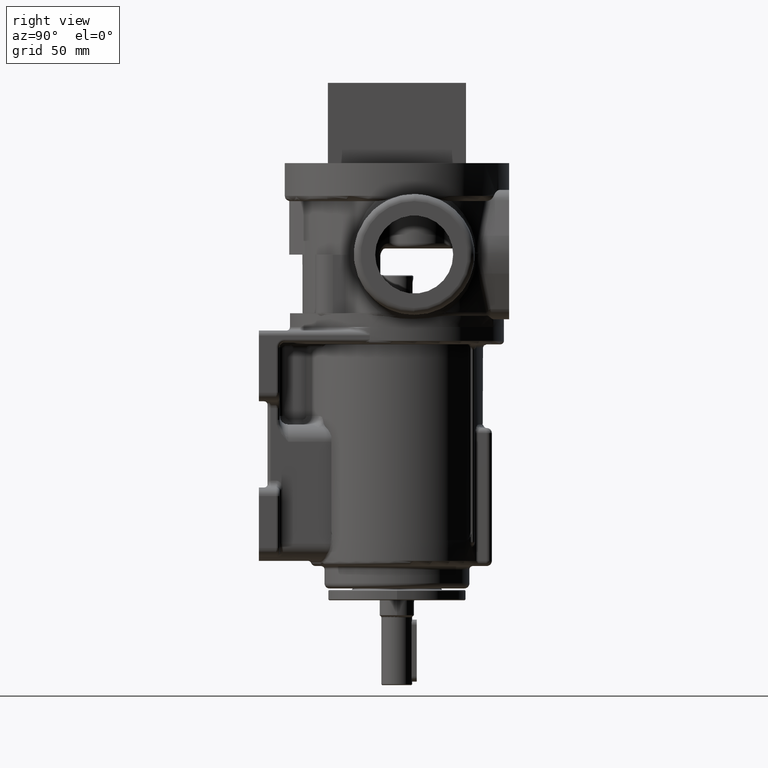
[diagram: clean part render]
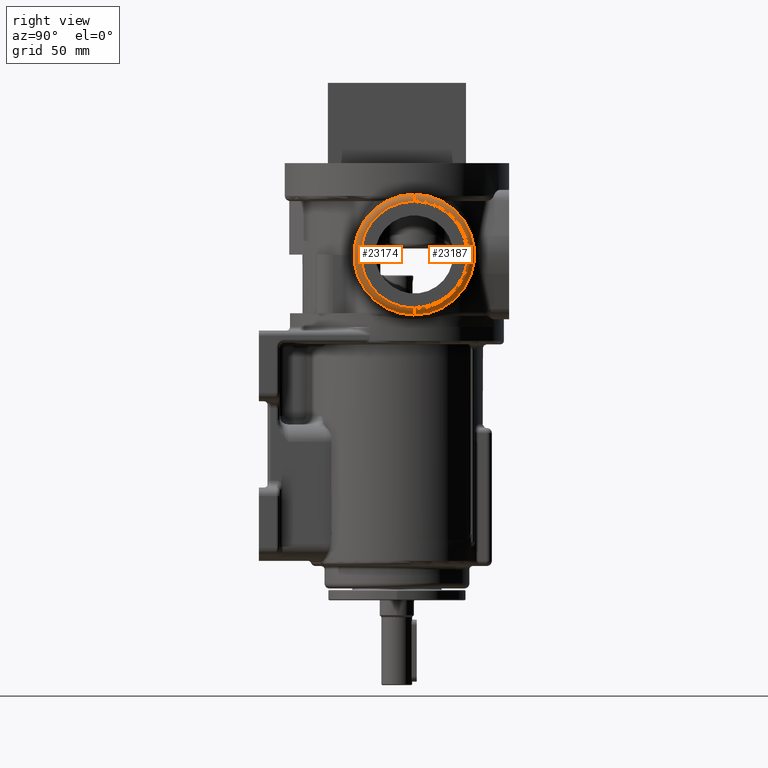
[diagram: same view with one multi-face feature highlighted, each face labeled with its STEP entity id]
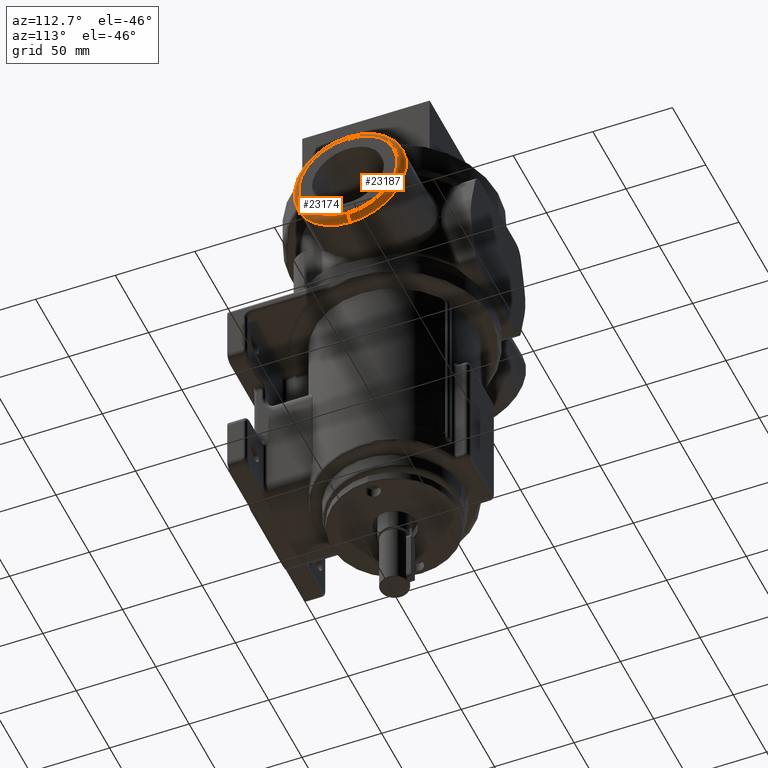
[diagram: same view with one multi-face feature highlighted, each face labeled with its STEP entity id]
A machine part, right view. The highlighted faces form ONE feature: a constant-radius fillet chain: 2 tangent blend faces with common blend radius 4 mm. The faces share edges in the B-rep.
A second angle (auxiliary view) of the same feature is appended — it is thin or edge-on in the first view.
Their STEP definitions:
[1] entity #23174 (Torus):
#7737=CARTESIAN_POINT('',(9.4E1,1.E1,4.2E1));
#7738=DIRECTION('',(1.E0,0.E0,0.E0));
#7739=DIRECTION('',(0.E0,0.E0,1.E0));
#7740=AXIS2_PLACEMENT_3D('',#7737,#7738,#7739);
#7757=CARTESIAN_POINT('',(9.E1,1.E1,7.3E1));
#7758=DIRECTION('',(0.E0,-1.E0,0.E0));
#7759=DIRECTION('',(1.E0,0.E0,0.E0));
#7760=AXIS2_PLACEMENT_3D('',#7757,#7758,#7759);
#7762=CARTESIAN_POINT('',(9.E1,1.E1,1.1E1));
#7763=DIRECTION('',(0.E0,1.E0,0.E0));
#7764=DIRECTION('',(1.E0,0.E0,0.E0));
#7765=AXIS2_PLACEMENT_3D('',#7762,#7763,#7764);
#8530=CARTESIAN_POINT('',(9.E1,1.E1,4.2E1));
#8531=DIRECTION('',(1.E0,0.E0,0.E0));
#8532=DIRECTION('',(0.E0,0.E0,1.E0));
#8533=AXIS2_PLACEMENT_3D('',#8530,#8531,#8532);
#12411=CARTESIAN_POINT('',(9.4E1,1.E1,7.3E1));
#12412=CARTESIAN_POINT('',(9.4E1,1.E1,1.1E1));
#12413=VERTEX_POINT('',#12411);
#12414=VERTEX_POINT('',#12412);
#12415=CARTESIAN_POINT('',(9.E1,1.E1,7.7E1));
#12416=CARTESIAN_POINT('',(9.E1,1.E1,7.E0));
#12417=VERTEX_POINT('',#12415);
#12418=VERTEX_POINT('',#12416);
#23160=CARTESIAN_POINT('',(9.E1,1.E1,4.2E1));
#23161=DIRECTION('',(-1.E0,0.E0,0.E0));
#23162=DIRECTION('',(0.E0,6.241028166272E-4,9.999998052478E-1));
#23163=AXIS2_PLACEMENT_3D('',#23160,#23161,#23162);
#23164=TOROIDAL_SURFACE('',#23163,3.1E1,4.E0);
#23165=ORIENTED_EDGE('',*,*,#23149,.T.);
#23167=ORIENTED_EDGE('',*,*,#23166,.T.);
#23169=ORIENTED_EDGE('',*,*,#23168,.F.);
#23171=ORIENTED_EDGE('',*,*,#23170,.F.);
#23172=EDGE_LOOP('',(#23165,#23167,#23169,#23171));
#23173=FACE_OUTER_BOUND('',#23172,.F.);
#23174=ADVANCED_FACE('',(#23173),#23164,.T.);
#7741=CIRCLE('',#7740,3.1E1);
#7761=CIRCLE('',#7760,4.E0);
#7766=CIRCLE('',#7765,4.E0);
#8534=CIRCLE('',#8533,3.5E1);
#23149=EDGE_CURVE('',#12413,#12414,#7741,.T.);
#23166=EDGE_CURVE('',#12414,#12418,#7766,.T.);
#23168=EDGE_CURVE('',#12417,#12418,#8534,.T.);
#23170=EDGE_CURVE('',#12413,#12417,#7761,.T.);
[2] entity #23187 (Torus):
#7742=CARTESIAN_POINT('',(9.4E1,1.E1,4.2E1));
#7743=DIRECTION('',(1.E0,0.E0,0.E0));
#7744=DIRECTION('',(0.E0,0.E0,-1.E0));
#7745=AXIS2_PLACEMENT_3D('',#7742,#7743,#7744);
#7757=CARTESIAN_POINT('',(9.E1,1.E1,7.3E1));
#7758=DIRECTION('',(0.E0,-1.E0,0.E0));
#7759=DIRECTION('',(1.E0,0.E0,0.E0));
#7760=AXIS2_PLACEMENT_3D('',#7757,#7758,#7759);
#7762=CARTESIAN_POINT('',(9.E1,1.E1,1.1E1));
#7763=DIRECTION('',(0.E0,1.E0,0.E0));
#7764=DIRECTION('',(1.E0,0.E0,0.E0));
#7765=AXIS2_PLACEMENT_3D('',#7762,#7763,#7764);
#7830=CARTESIAN_POINT('',(9.E1,1.E1,4.2E1));
#7831=DIRECTION('',(1.E0,0.E0,0.E0));
#7832=DIRECTION('',(0.E0,0.E0,-1.E0));
#7833=AXIS2_PLACEMENT_3D('',#7830,#7831,#7832);
#12411=CARTESIAN_POINT('',(9.4E1,1.E1,7.3E1));
#12412=CARTESIAN_POINT('',(9.4E1,1.E1,1.1E1));
#12413=VERTEX_POINT('',#12411);
#12414=VERTEX_POINT('',#12412);
#12415=CARTESIAN_POINT('',(9.E1,1.E1,7.7E1));
#12416=CARTESIAN_POINT('',(9.E1,1.E1,7.E0));
#12417=VERTEX_POINT('',#12415);
#12418=VERTEX_POINT('',#12416);
#23175=CARTESIAN_POINT('',(9.E1,1.E1,4.2E1));
#23176=DIRECTION('',(-1.E0,0.E0,0.E0));
#23177=DIRECTION('',(0.E0,-6.241028166277E-4,-9.999998052478E-1));
#23178=AXIS2_PLACEMENT_3D('',#23175,#23176,#23177);
#23179=TOROIDAL_SURFACE('',#23178,3.1E1,4.E0);
#23180=ORIENTED_EDGE('',*,*,#23151,.T.);
#23181=ORIENTED_EDGE('',*,*,#23170,.T.);
#23183=ORIENTED_EDGE('',*,*,#23182,.F.);
#23184=ORIENTED_EDGE('',*,*,#23166,.F.);
#23185=EDGE_LOOP('',(#23180,#23181,#23183,#23184));
#23186=FACE_OUTER_BOUND('',#23185,.F.);
#23187=ADVANCED_FACE('',(#23186),#23179,.T.);
#7746=CIRCLE('',#7745,3.1E1);
#7761=CIRCLE('',#7760,4.E0);
#7766=CIRCLE('',#7765,4.E0);
#7834=CIRCLE('',#7833,3.5E1);
#23151=EDGE_CURVE('',#12414,#12413,#7746,.T.);
#23166=EDGE_CURVE('',#12414,#12418,#7766,.T.);
#23170=EDGE_CURVE('',#12413,#12417,#7761,.T.);
#23182=EDGE_CURVE('',#12418,#12417,#7834,.T.);